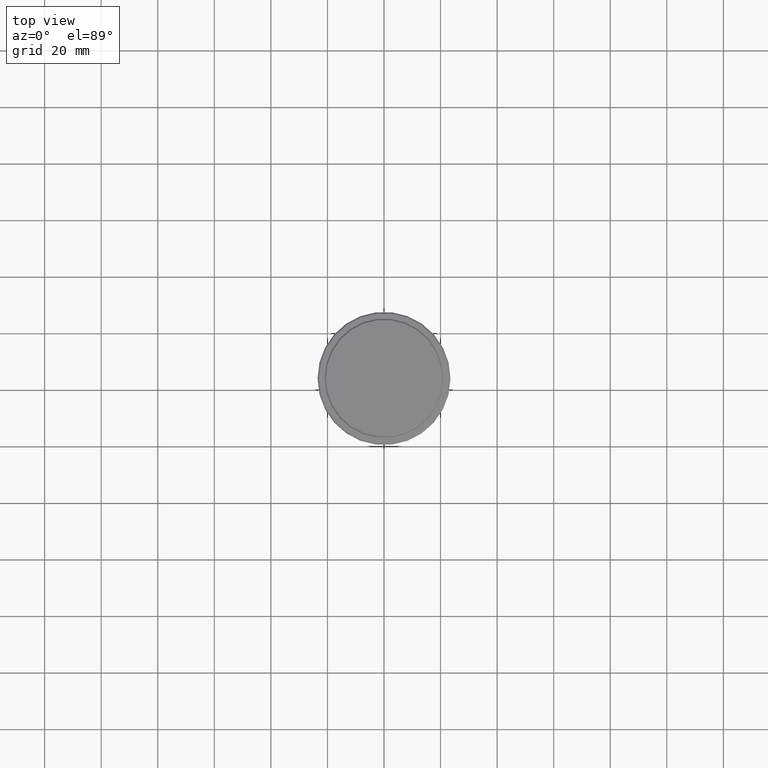
[diagram: clean part render]
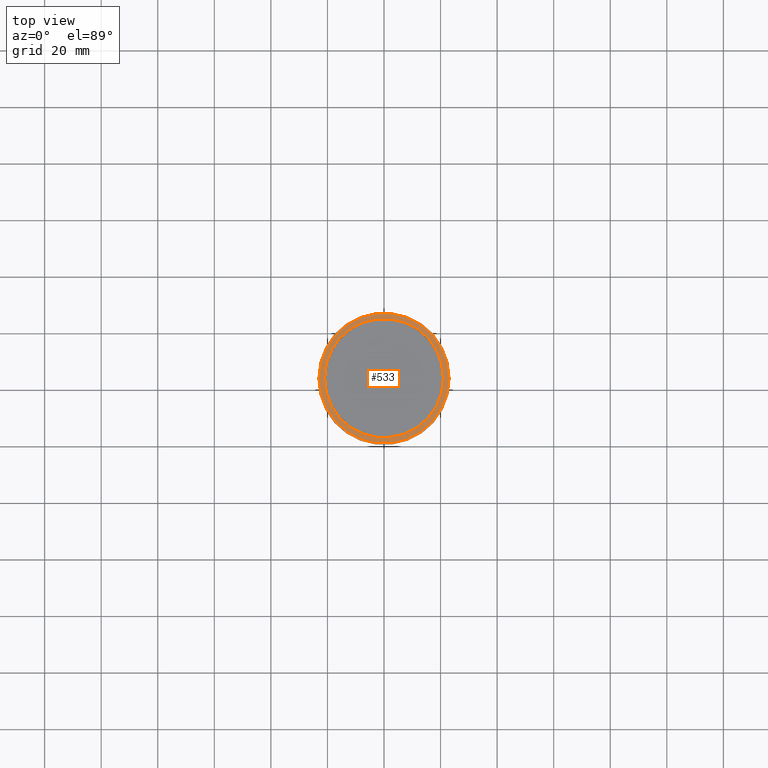
[diagram: same view with one face highlighted and labeled with its STEP entity id]
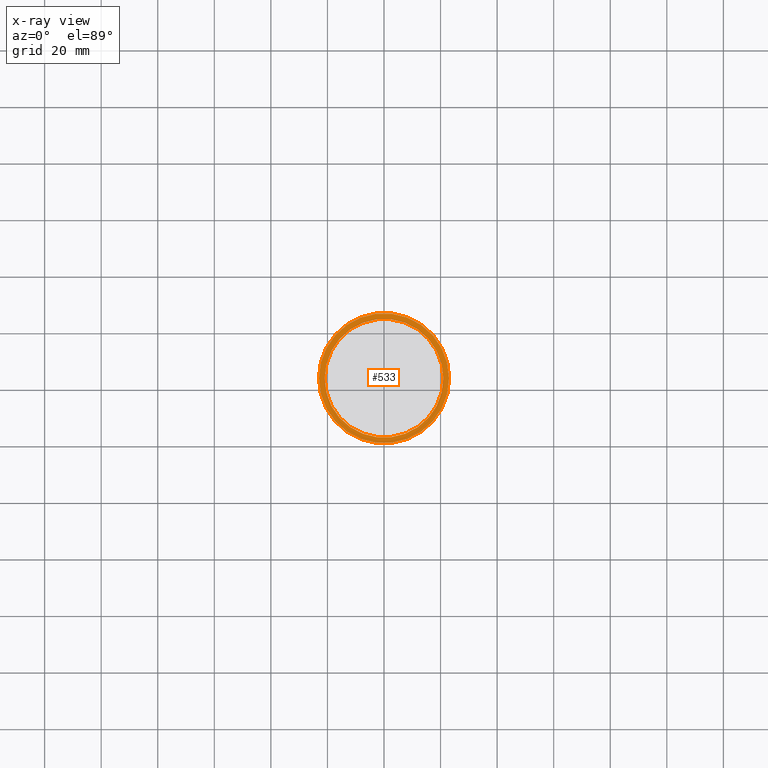
[diagram: x-ray of the same camera — body ghosted, the highlighted face saturated]
A machine part, top view. The second image highlights one B-rep face of the part: STEP entity #533.
The next image is the same camera in x-ray: the body ghosted, the highlighted face saturated — about 0% of this face is hidden behind the body in this view.
In plain terms, the highlighted planar face has unit normal (0, -0, 1).
Its self-contained STEP definition (entity closure, byte-faithful):
#32 = DIRECTION ( 'NONE',  ( 1.000000000000000000, 0.000000000000000000, 0.000000000000000000 ) ) ;
#38 = FACE_BOUND ( 'NONE', #504, .T. ) ;
#58 = EDGE_LOOP ( 'NONE', ( #1164, #491 ) ) ;
#126 = DIRECTION ( 'NONE',  ( 0.000000000000000000, 0.000000000000000000, -1.000000000000000000 ) ) ;
#137 = EDGE_CURVE ( 'NONE', #499, #1280, #1102, .T. ) ;
#143 = AXIS2_PLACEMENT_3D ( 'NONE', #688, #1213, #1019 ) ;
#161 = CIRCLE ( 'NONE', #1352, 23.00000000000002487 ) ;
#192 = ORIENTED_EDGE ( 'NONE', *, *, #992, .T. ) ;
#272 = AXIS2_PLACEMENT_3D ( 'NONE', #1127, #1021, #816 ) ;
#311 = EDGE_CURVE ( 'NONE', #928, #767, #829, .T. ) ;
#348 = CARTESIAN_POINT ( 'NONE',  ( 0.000000000000000000, 20.49999999999999645, -9.000000000000000000 ) ) ;
#442 = EDGE_CURVE ( 'NONE', #1280, #499, #161, .T. ) ;
#491 = ORIENTED_EDGE ( 'NONE', *, *, #442, .T. ) ;
#499 = VERTEX_POINT ( 'NONE', #1346 ) ;
#504 = EDGE_LOOP ( 'NONE', ( #192, #631 ) ) ;
#533 = ADVANCED_FACE ( 'NONE', ( #1132, #38 ), #1336, .T. ) ;
#562 = CARTESIAN_POINT ( 'NONE',  ( -20.99999999999999289, 2.571758278209440872E-15, -9.000000000000000000 ) ) ;
#631 = ORIENTED_EDGE ( 'NONE', *, *, #311, .T. ) ;
#665 = DIRECTION ( 'NONE',  ( 1.000000000000000000, 0.000000000000000000, 0.000000000000000000 ) ) ;
#675 = CIRCLE ( 'NONE', #143, 20.99999999999999289 ) ;
#688 = CARTESIAN_POINT ( 'NONE',  ( 0.000000000000000000, 0.000000000000000000, -9.000000000000000000 ) ) ;
#708 = DIRECTION ( 'NONE',  ( 0.000000000000000000, -0.000000000000000000, 1.000000000000000000 ) ) ;
#755 = CARTESIAN_POINT ( 'NONE',  ( 0.000000000000000000, 0.000000000000000000, -9.000000000000000000 ) ) ;
#767 = VERTEX_POINT ( 'NONE', #1182 ) ;
#816 = DIRECTION ( 'NONE',  ( 1.000000000000000000, 0.000000000000000000, 0.000000000000000000 ) ) ;
#829 = CIRCLE ( 'NONE', #1261, 20.99999999999999289 ) ;
#908 = CARTESIAN_POINT ( 'NONE',  ( 0.000000000000000000, 0.000000000000000000, -9.000000000000000000 ) ) ;
#928 = VERTEX_POINT ( 'NONE', #562 ) ;
#992 = EDGE_CURVE ( 'NONE', #767, #928, #675, .T. ) ;
#1003 = DIRECTION ( 'NONE',  ( -0.000000000000000000, -0.000000000000000000, 1.000000000000000000 ) ) ;
#1012 = AXIS2_PLACEMENT_3D ( 'NONE', #348, #708, #32 ) ;
#1019 = DIRECTION ( 'NONE',  ( 1.000000000000000000, 0.000000000000000000, 0.000000000000000000 ) ) ;
#1021 = DIRECTION ( 'NONE',  ( -0.000000000000000000, -0.000000000000000000, 1.000000000000000000 ) ) ;
#1102 = CIRCLE ( 'NONE', #272, 23.00000000000002487 ) ;
#1127 = CARTESIAN_POINT ( 'NONE',  ( 0.000000000000000000, 0.000000000000000000, -9.000000000000000000 ) ) ;
#1132 = FACE_OUTER_BOUND ( 'NONE', #58, .T. ) ;
#1164 = ORIENTED_EDGE ( 'NONE', *, *, #137, .T. ) ;
#1182 = CARTESIAN_POINT ( 'NONE',  ( 20.99999999999999289, 0.000000000000000000, -9.000000000000000000 ) ) ;
#1194 = CARTESIAN_POINT ( 'NONE',  ( 23.00000000000002487, 2.847303808017597717E-15, -9.000000000000000000 ) ) ;
#1213 = DIRECTION ( 'NONE',  ( 0.000000000000000000, 0.000000000000000000, -1.000000000000000000 ) ) ;
#1236 = DIRECTION ( 'NONE',  ( 1.000000000000000000, 0.000000000000000000, 0.000000000000000000 ) ) ;
#1261 = AXIS2_PLACEMENT_3D ( 'NONE', #755, #126, #665 ) ;
#1280 = VERTEX_POINT ( 'NONE', #1194 ) ;
#1336 = PLANE ( 'NONE',  #1012 ) ;
#1346 = CARTESIAN_POINT ( 'NONE',  ( -23.00000000000002487, 0.000000000000000000, -9.000000000000000000 ) ) ;
#1352 = AXIS2_PLACEMENT_3D ( 'NONE', #908, #1003, #1236 ) ;